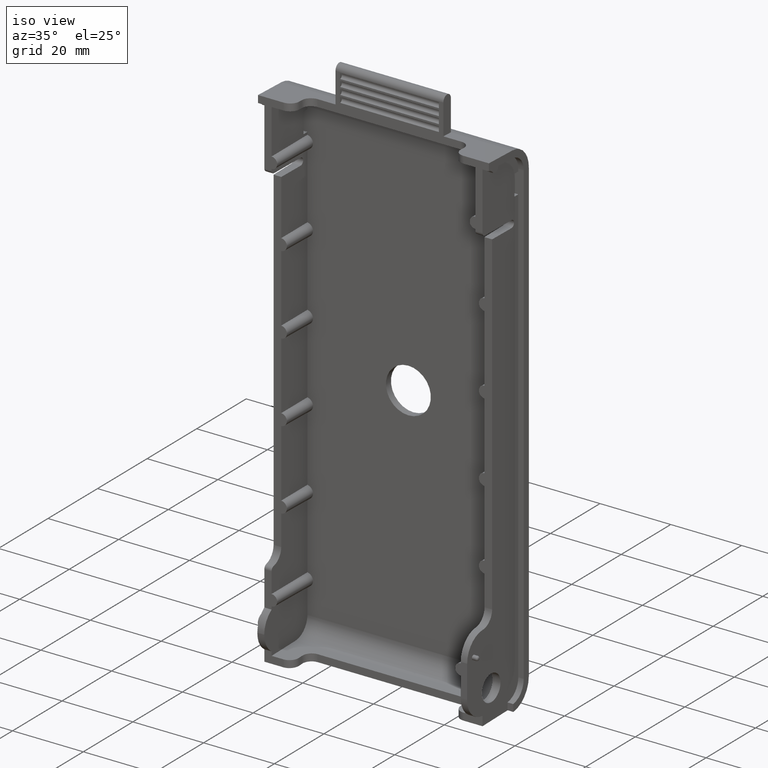
[diagram: clean part render]
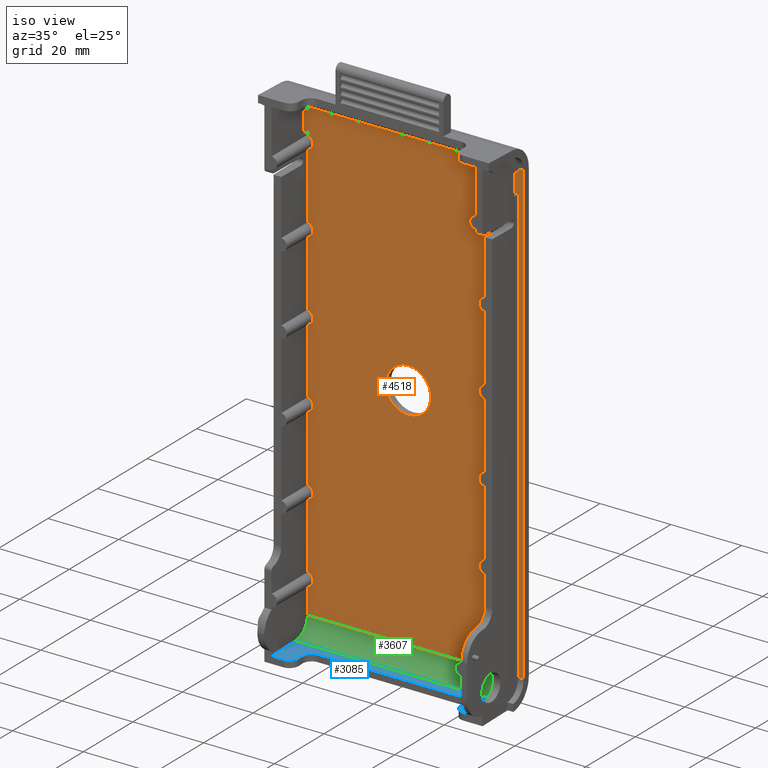
[diagram: same view with three faces highlighted in distinct colors, each labeled with its STEP entity id]
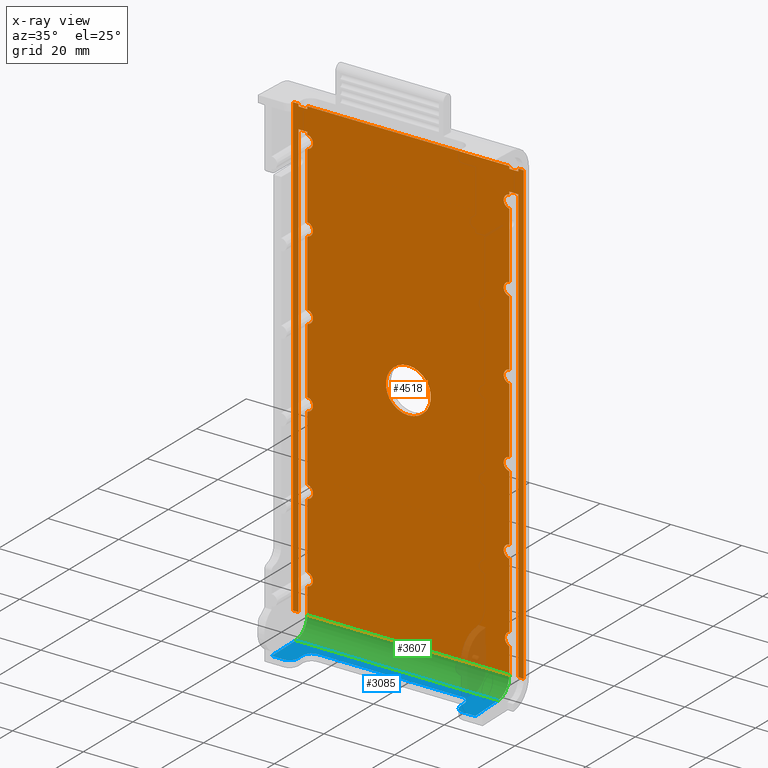
[diagram: x-ray of the same camera — body ghosted, the three highlighted faces saturated]
A machine part, iso view with three faces highlighted in distinct colors.
The next image is the same camera in x-ray (body ghosted, the three faces saturated) — at least one of them is partly hidden behind the body in this view.
Their STEP definitions:

[orange] entity #4518 — the highlighted planar face has unit normal (0, -1, 0).
#4 = VERTEX_POINT ( 'NONE', #1931 ) ;
#19 = ORIENTED_EDGE ( 'NONE', *, *, #150, .F. ) ;
#21 = LINE ( 'NONE', #4323, #904 ) ;
#32 = EDGE_CURVE ( 'NONE', #1934, #3580, #342, .T. ) ;
#70 = VECTOR ( 'NONE', #3710, 39.37007874015748100 ) ;
#77 = CARTESIAN_POINT ( 'NONE',  ( 0.0000000000000000000, 0.5549999999999999400, 0.0000000000000000000 ) ) ;
#78 = CIRCLE ( 'NONE', #1580, 0.07218756103516076100 ) ;
#81 = CARTESIAN_POINT ( 'NONE',  ( 1.123716286491911700, 0.5550000000000000500, 2.774499999999998400 ) ) ;
#111 = DIRECTION ( 'NONE',  ( 1.000000000000000000, 0.0000000000000000000, 0.0000000000000000000 ) ) ;
#114 = CARTESIAN_POINT ( 'NONE',  ( -1.123716286491911700, 0.5550000000000000500, 2.774499999999998400 ) ) ;
#115 = EDGE_CURVE ( 'NONE', #916, #2253, #3965, .T. ) ;
#132 = CIRCLE ( 'NONE', #3365, 0.07218756103516083000 ) ;
#143 = VECTOR ( 'NONE', #3775, 39.37007874015748100 ) ;
#150 = EDGE_CURVE ( 'NONE', #1934, #2458, #3128, .T. ) ;
#160 = ORIENTED_EDGE ( 'NONE', *, *, #2166, .T. ) ;
#177 = CARTESIAN_POINT ( 'NONE',  ( 1.123716286491911700, 0.5550000000000000500, -1.391534572965770900 ) ) ;
#191 = DIRECTION ( 'NONE',  ( -0.0000000000000000000, -0.0000000000000000000, -1.000000000000000000 ) ) ;
#205 = ORIENTED_EDGE ( 'NONE', *, *, #115, .T. ) ;
#208 = CARTESIAN_POINT ( 'NONE',  ( -1.123716286491911700, 0.5550000000000000500, -1.248465427034229500 ) ) ;
#221 = ORIENTED_EDGE ( 'NONE', *, *, #1608, .T. ) ;
#241 = LINE ( 'NONE', #1715, #2268 ) ;
#268 = CARTESIAN_POINT ( 'NONE',  ( 1.123716286491911700, 0.5550000000000000500, 0.3684654270342294600 ) ) ;
#310 = CARTESIAN_POINT ( 'NONE',  ( 1.123716286491911700, 0.5550000000000000500, 2.774499999999998400 ) ) ;
#319 = EDGE_CURVE ( 'NONE', #5039, #3277, #337, .T. ) ;
#337 = CIRCLE ( 'NONE', #3792, 0.2500000000000000000 ) ;
#340 = CARTESIAN_POINT ( 'NONE',  ( 1.123716286491911700, 0.5550000000000000500, 0.5115345729657705400 ) ) ;
#342 = CIRCLE ( 'NONE', #1422, 0.07218756103516076100 ) ;
#352 = EDGE_CURVE ( 'NONE', #2425, #4910, #4421, .T. ) ;
#355 = LINE ( 'NONE', #1345, #1629 ) ;
#378 = ORIENTED_EDGE ( 'NONE', *, *, #1796, .T. ) ;
#394 = CIRCLE ( 'NONE', #1510, 0.07218756103516076100 ) ;
#403 = LINE ( 'NONE', #2395, #2659 ) ;
#439 = EDGE_CURVE ( 'NONE', #2591, #4648, #4989, .T. ) ;
#468 = LINE ( 'NONE', #3773, #2799 ) ;
#487 = VERTEX_POINT ( 'NONE', #4397 ) ;
#494 = ORIENTED_EDGE ( 'NONE', *, *, #1474, .F. ) ;
#527 = FACE_BOUND ( 'NONE', #890, .T. ) ;
#531 = AXIS2_PLACEMENT_3D ( 'NONE', #3069, #3063, #3060 ) ;
#554 = DIRECTION ( 'NONE',  ( -1.398599473538766500E-018, 8.012571017583610100E-017, -1.000000000000000000 ) ) ;
#589 = DIRECTION ( 'NONE',  ( -1.398599473538766500E-018, -8.012571017583610100E-017, 1.000000000000000000 ) ) ;
#645 = VECTOR ( 'NONE', #4068, 39.37007874015748100 ) ;
#649 = CARTESIAN_POINT ( 'NONE',  ( 1.123716286491911700, 0.5550000000000000500, 1.248465427034229500 ) ) ;
#655 = CARTESIAN_POINT ( 'NONE',  ( -1.223103594805742500, 0.5550000000000003800, 2.817825311372742700 ) ) ;
#661 = DIRECTION ( 'NONE',  ( -1.398599473538766500E-018, 8.012571017583610100E-017, -1.000000000000000000 ) ) ;
#662 = VERTEX_POINT ( 'NONE', #4088 ) ;
#684 = CARTESIAN_POINT ( 'NONE',  ( -1.328100000000000100, 0.5550000000000008300, 2.299999999999999800 ) ) ;
#698 = VERTEX_POINT ( 'NONE', #3948 ) ;
#713 = DIRECTION ( 'NONE',  ( 1.000000000000000000, -0.0000000000000000000, -0.0000000000000000000 ) ) ;
#727 = VERTEX_POINT ( 'NONE', #3931 ) ;
#736 = ORIENTED_EDGE ( 'NONE', *, *, #4369, .T. ) ;
#786 = EDGE_CURVE ( 'NONE', #4953, #3836, #2579, .T. ) ;
#807 = CIRCLE ( 'NONE', #4418, 0.07218756103516083000 ) ;
#831 = CARTESIAN_POINT ( 'NONE',  ( -1.123716286491911700, 0.5550000000000000500, 2.774499999999998400 ) ) ;
#890 = EDGE_LOOP ( 'NONE', ( #2555, #2574 ) ) ;
#896 = CARTESIAN_POINT ( 'NONE',  ( 1.123716286491911700, 0.5550000000000000500, 2.774499999999998400 ) ) ;
#904 = VECTOR ( 'NONE', #4330, 39.37007874015748100 ) ;
#916 = VERTEX_POINT ( 'NONE', #3610 ) ;
#937 = LINE ( 'NONE', #3223, #1976 ) ;
#941 = DIRECTION ( 'NONE',  ( 0.0000000000000000000, 0.0000000000000000000, -1.000000000000000000 ) ) ;
#969 = DIRECTION ( 'NONE',  ( -0.0000000000000000000, -0.0000000000000000000, -1.000000000000000000 ) ) ;
#970 = ORIENTED_EDGE ( 'NONE', *, *, #4920, .T. ) ;
#990 = ORIENTED_EDGE ( 'NONE', *, *, #2237, .F. ) ;
#1000 = CARTESIAN_POINT ( 'NONE',  ( -1.284500000000000000, 0.5550000000000008300, -2.557089342174827500 ) ) ;
#1041 = VECTOR ( 'NONE', #111, 39.37007874015748100 ) ;
#1051 = ORIENTED_EDGE ( 'NONE', *, *, #3376, .F. ) ;
#1072 = ORIENTED_EDGE ( 'NONE', *, *, #1822, .T. ) ;
#1080 = VECTOR ( 'NONE', #661, 39.37007874015748100 ) ;
#1094 = VERTEX_POINT ( 'NONE', #3107 ) ;
#1095 = EDGE_CURVE ( 'NONE', #3378, #2924, #1567, .T. ) ;
#1120 = EDGE_CURVE ( 'NONE', #4718, #4953, #1825, .T. ) ;
#1122 = CARTESIAN_POINT ( 'NONE',  ( -1.223103594805742500, 0.5550000000000008300, -2.557089342174827500 ) ) ;
#1145 = VERTEX_POINT ( 'NONE', #3031 ) ;
#1161 = LINE ( 'NONE', #1243, #4135 ) ;
#1164 = AXIS2_PLACEMENT_3D ( 'NONE', #1561, #1683, #1706 ) ;
#1180 = VERTEX_POINT ( 'NONE', #2871 ) ;
#1182 = EDGE_CURVE ( 'NONE', #1479, #1251, #3027, .T. ) ;
#1183 = VERTEX_POINT ( 'NONE', #2831 ) ;
#1190 = VECTOR ( 'NONE', #1285, 39.37007874015748100 ) ;
#1201 = LINE ( 'NONE', #3933, #1443 ) ;
#1207 = FACE_OUTER_BOUND ( 'NONE', #4337, .T. ) ;
#1243 = CARTESIAN_POINT ( 'NONE',  ( 1.123716286491911700, 0.5550000000000000500, 2.774499999999998400 ) ) ;
#1251 = VERTEX_POINT ( 'NONE', #2676 ) ;
#1284 = CARTESIAN_POINT ( 'NONE',  ( -1.123716286491911700, 0.5550000000000000500, 2.774499999999998400 ) ) ;
#1285 = DIRECTION ( 'NONE',  ( -0.0000000000000000000, -0.0000000000000000000, -1.000000000000000000 ) ) ;
#1290 = CARTESIAN_POINT ( 'NONE',  ( 1.123716286491911700, 0.5550000000000008300, 2.299999999999999800 ) ) ;
#1299 = CARTESIAN_POINT ( 'NONE',  ( 1.224499999999999900, 0.5550000000000000500, 2.817825311372742700 ) ) ;
#1323 = CARTESIAN_POINT ( 'NONE',  ( -1.223103594805742500, 0.5550000000000008300, 2.299999999999999800 ) ) ;
#1345 = CARTESIAN_POINT ( 'NONE',  ( -1.328100000000000100, 0.5550000000000008300, 2.529999999999999400 ) ) ;
#1369 = VERTEX_POINT ( 'NONE', #1323 ) ;
#1378 = LINE ( 'NONE', #684, #1975 ) ;
#1422 = AXIS2_PLACEMENT_3D ( 'NONE', #1781, #1772, #1757 ) ;
#1436 = LINE ( 'NONE', #81, #2280 ) ;
#1439 = CARTESIAN_POINT ( 'NONE',  ( 1.123716286491911700, 0.5550000000000000500, -2.128864286417290400 ) ) ;
#1443 = VECTOR ( 'NONE', #2726, 39.37007874015748100 ) ;
#1447 = CARTESIAN_POINT ( 'NONE',  ( 1.123716286491911700, 0.5550000000000000500, -2.271132438499892100 ) ) ;
#1449 = CARTESIAN_POINT ( 'NONE',  ( -1.223103594805742500, 0.5550000000000003800, 2.817825311372742700 ) ) ;
#1473 = CARTESIAN_POINT ( 'NONE',  ( 1.046828546081596900, 0.5550000000000000500, -2.241239976024747400 ) ) ;
#1474 = EDGE_CURVE ( 'NONE', #3378, #3580, #1436, .T. ) ;
#1479 = VERTEX_POINT ( 'NONE', #4961 ) ;
#1488 = CARTESIAN_POINT ( 'NONE',  ( 1.123716286491911700, 0.5550000000000000500, 2.774499999999998400 ) ) ;
#1491 = CARTESIAN_POINT ( 'NONE',  ( 1.046828546081596900, 0.5550000000000000500, -2.158756748892435100 ) ) ;
#1510 = AXIS2_PLACEMENT_3D ( 'NONE', #2357, #4077, #4111 ) ;
#1520 = CIRCLE ( 'NONE', #1164, 0.07218756103516083000 ) ;
#1551 = VERTEX_POINT ( 'NONE', #2863 ) ;
#1561 = CARTESIAN_POINT ( 'NONE',  ( 1.133403847527069100, 0.5550000000000000500, -1.320000000000000100 ) ) ;
#1567 = CIRCLE ( 'NONE', #2190, 0.07218756103516083000 ) ;
#1580 = AXIS2_PLACEMENT_3D ( 'NONE', #2056, #2066, #2076 ) ;
#1588 = CARTESIAN_POINT ( 'NONE',  ( -1.123716286491911700, 0.5550000000000000500, 0.5115345729657705400 ) ) ;
#1593 = LINE ( 'NONE', #655, #1080 ) ;
#1608 = EDGE_CURVE ( 'NONE', #1655, #4967, #132, .T. ) ;
#1629 = VECTOR ( 'NONE', #3199, 39.37007874015748100 ) ;
#1655 = VERTEX_POINT ( 'NONE', #2590 ) ;
#1662 = ORIENTED_EDGE ( 'NONE', *, *, #5043, .F. ) ;
#1682 = ORIENTED_EDGE ( 'NONE', *, *, #4759, .F. ) ;
#1683 = DIRECTION ( 'NONE',  ( -0.0000000000000000000, 1.000000000000000000, -0.0000000000000000000 ) ) ;
#1698 = CARTESIAN_POINT ( 'NONE',  ( -1.123716286491911200, 0.5550000000000000500, 2.557089342174832000 ) ) ;
#1702 = CARTESIAN_POINT ( 'NONE',  ( -1.123716286491911700, 0.5550000000000000500, 2.774499999999998400 ) ) ;
#1706 = DIRECTION ( 'NONE',  ( 0.0000000000000000000, 0.0000000000000000000, -1.000000000000000000 ) ) ;
#1715 = CARTESIAN_POINT ( 'NONE',  ( 1.223103594805742500, 0.5550000000000003800, 2.817825311372742700 ) ) ;
#1749 = ORIENTED_EDGE ( 'NONE', *, *, #2550, .F. ) ;
#1757 = DIRECTION ( 'NONE',  ( 0.0000000000000000000, 0.0000000000000000000, -1.000000000000000000 ) ) ;
#1766 = CARTESIAN_POINT ( 'NONE',  ( -1.123716286491911700, 0.5550000000000000500, 2.128465427034229600 ) ) ;
#1772 = DIRECTION ( 'NONE',  ( -0.0000000000000000000, 1.000000000000000000, -0.0000000000000000000 ) ) ;
#1781 = CARTESIAN_POINT ( 'NONE',  ( 1.133403847527069100, 0.5550000000000000500, 0.4400000000000000000 ) ) ;
#1782 = DIRECTION ( 'NONE',  ( -0.0000000000000000000, 1.000000000000000000, -0.0000000000000000000 ) ) ;
#1790 = DIRECTION ( 'NONE',  ( -1.398599473538766500E-018, -8.012571017583610100E-017, 1.000000000000000000 ) ) ;
#1796 = EDGE_CURVE ( 'NONE', #1094, #1655, #2479, .T. ) ;
#1802 = DIRECTION ( 'NONE',  ( -0.0000000000000000000, -0.0000000000000000000, -1.000000000000000000 ) ) ;
#1822 = EDGE_CURVE ( 'NONE', #3836, #2400, #78, .T. ) ;
#1825 = CIRCLE ( 'NONE', #531, 0.07218756103516083000 ) ;
#1854 = LINE ( 'NONE', #3760, #70 ) ;
#1857 = CARTESIAN_POINT ( 'NONE',  ( 1.123716286491911700, 0.5550000000000008300, 2.529999999999999400 ) ) ;
#1921 = VERTEX_POINT ( 'NONE', #177 ) ;
#1924 = DIRECTION ( 'NONE',  ( 0.0000000000000000000, -1.000000000000000000, 0.0000000000000000000 ) ) ;
#1931 = CARTESIAN_POINT ( 'NONE',  ( -1.123716286491911700, 0.5550000000000000500, -1.391534572965770900 ) ) ;
#1934 = VERTEX_POINT ( 'NONE', #268 ) ;
#1975 = VECTOR ( 'NONE', #713, 39.37007874015748100 ) ;
#1976 = VECTOR ( 'NONE', #4374, 39.37007874015748100 ) ;
#1989 = EDGE_CURVE ( 'NONE', #4470, #3071, #1378, .T. ) ;
#2042 = DIRECTION ( 'NONE',  ( -0.0000000000000000000, -0.0000000000000000000, -1.000000000000000000 ) ) ;
#2056 = CARTESIAN_POINT ( 'NONE',  ( -1.133403847527069100, 0.5550000000000000500, 0.4400000000000000000 ) ) ;
#2066 = DIRECTION ( 'NONE',  ( -0.0000000000000000000, 1.000000000000000000, -0.0000000000000000000 ) ) ;
#2076 = DIRECTION ( 'NONE',  ( 0.0000000000000000000, 0.0000000000000000000, -1.000000000000000000 ) ) ;
#2077 = PLANE ( 'NONE',  #3282 ) ;
#2084 = ORIENTED_EDGE ( 'NONE', *, *, #2778, .F. ) ;
#2089 = ORIENTED_EDGE ( 'NONE', *, *, #1095, .T. ) ;
#2103 = DIRECTION ( 'NONE',  ( 0.0000000000000000000, -1.000000000000000000, 0.0000000000000000000 ) ) ;
#2105 = CARTESIAN_POINT ( 'NONE',  ( -1.123716286491911700, 0.5550000000000000500, 0.3684654270342294600 ) ) ;
#2114 = ORIENTED_EDGE ( 'NONE', *, *, #4771, .F. ) ;
#2166 = EDGE_CURVE ( 'NONE', #4156, #4164, #807, .T. ) ;
#2183 = AXIS2_PLACEMENT_3D ( 'NONE', #77, #1924, #2438 ) ;
#2190 = AXIS2_PLACEMENT_3D ( 'NONE', #3096, #3079, #3082 ) ;
#2195 = CARTESIAN_POINT ( 'NONE',  ( -1.123716286491911700, 0.5550000000000000500, 1.248465427034229500 ) ) ;
#2203 = VECTOR ( 'NONE', #589, 39.37007874015748100 ) ;
#2234 = EDGE_CURVE ( 'NONE', #698, #1183, #1854, .T. ) ;
#2237 = EDGE_CURVE ( 'NONE', #4597, #5185, #468, .T. ) ;
#2240 = CARTESIAN_POINT ( 'NONE',  ( 3.061616997868382400E-017, 0.5549999999999999400, -0.2500000000000000000 ) ) ;
#2253 = VERTEX_POINT ( 'NONE', #3681 ) ;
#2256 = CARTESIAN_POINT ( 'NONE',  ( 1.133403847527069100, 0.5550000000000000500, 2.200000000000000200 ) ) ;
#2261 = DIRECTION ( 'NONE',  ( -0.0000000000000000000, -0.0000000000000000000, -1.000000000000000000 ) ) ;
#2268 = VECTOR ( 'NONE', #1790, 39.37007874015748100 ) ;
#2272 = VECTOR ( 'NONE', #3888, 39.37007874015748100 ) ;
#2280 = VECTOR ( 'NONE', #4773, 39.37007874015748100 ) ;
#2287 = VECTOR ( 'NONE', #3925, 39.37007874015748100 ) ;
#2320 = CARTESIAN_POINT ( 'NONE',  ( -1.123716286491911700, 0.5550000000000000500, -2.271534572965770800 ) ) ;
#2321 = EDGE_CURVE ( 'NONE', #487, #4280, #394, .T. ) ;
#2334 = CARTESIAN_POINT ( 'NONE',  ( 1.133403847527069100, 0.5550000000000000500, -0.4400000000000000000 ) ) ;
#2337 = EDGE_CURVE ( 'NONE', #727, #4406, #1201, .T. ) ;
#2349 = ORIENTED_EDGE ( 'NONE', *, *, #2417, .T. ) ;
#2353 = DIRECTION ( 'NONE',  ( -0.0000000000000000000, 1.000000000000000000, -0.0000000000000000000 ) ) ;
#2357 = CARTESIAN_POINT ( 'NONE',  ( -1.133403847527069100, 0.5550000000000000500, -0.4400000000000000000 ) ) ;
#2361 = DIRECTION ( 'NONE',  ( 0.0000000000000000000, 0.0000000000000000000, -1.000000000000000000 ) ) ;
#2384 = ORIENTED_EDGE ( 'NONE', *, *, #2709, .T. ) ;
#2395 = CARTESIAN_POINT ( 'NONE',  ( -1.328100000000000100, 0.5550000000000008300, 2.299999999999999800 ) ) ;
#2400 = VERTEX_POINT ( 'NONE', #2105 ) ;
#2417 = EDGE_CURVE ( 'NONE', #2400, #487, #2843, .T. ) ;
#2418 = LINE ( 'NONE', #114, #2272 ) ;
#2425 = VERTEX_POINT ( 'NONE', #5118 ) ;
#2430 = EDGE_CURVE ( 'NONE', #3945, #2946, #355, .T. ) ;
#2438 = DIRECTION ( 'NONE',  ( 0.0000000000000000000, 0.0000000000000000000, -1.000000000000000000 ) ) ;
#2458 = VERTEX_POINT ( 'NONE', #5050 ) ;
#2462 = AXIS2_PLACEMENT_3D ( 'NONE', #2334, #2353, #2361 ) ;
#2477 = VECTOR ( 'NONE', #2678, 39.37007874015748100 ) ;
#2479 = LINE ( 'NONE', #1702, #3553 ) ;
#2483 = CARTESIAN_POINT ( 'NONE',  ( 1.123716286491911700, 0.5550000000000000500, 2.774499999999998400 ) ) ;
#2486 = ORIENTED_EDGE ( 'NONE', *, *, #2842, .F. ) ;
#2531 = ORIENTED_EDGE ( 'NONE', *, *, #2853, .T. ) ;
#2536 = EDGE_CURVE ( 'NONE', #4805, #4, #3186, .T. ) ;
#2550 = EDGE_CURVE ( 'NONE', #1551, #3071, #4134, .T. ) ;
#2555 = ORIENTED_EDGE ( 'NONE', *, *, #3939, .F. ) ;
#2574 = ORIENTED_EDGE ( 'NONE', *, *, #319, .F. ) ;
#2579 = LINE ( 'NONE', #3900, #3320 ) ;
#2590 = CARTESIAN_POINT ( 'NONE',  ( -1.123716286491911700, 0.5550000000000000500, 2.271534572965770800 ) ) ;
#2591 = VERTEX_POINT ( 'NONE', #1857 ) ;
#2626 = ORIENTED_EDGE ( 'NONE', *, *, #2536, .T. ) ;
#2650 = LINE ( 'NONE', #3665, #2287 ) ;
#2657 = ORIENTED_EDGE ( 'NONE', *, *, #2337, .F. ) ;
#2659 = VECTOR ( 'NONE', #3289, 39.37007874015748100 ) ;
#2676 = CARTESIAN_POINT ( 'NONE',  ( 1.284500000000000000, 0.5550000000000002700, 2.557089342174832000 ) ) ;
#2678 = DIRECTION ( 'NONE',  ( -0.0000000000000000000, -0.0000000000000000000, -1.000000000000000000 ) ) ;
#2702 = ORIENTED_EDGE ( 'NONE', *, *, #2430, .F. ) ;
#2709 = EDGE_CURVE ( 'NONE', #4597, #4873, #3428, .T. ) ;
#2726 = DIRECTION ( 'NONE',  ( -1.000000000000000000, -0.0000000000000000000, -0.0000000000000000000 ) ) ;
#2730 = VECTOR ( 'NONE', #4516, 39.37007874015748100 ) ;
#2735 = LINE ( 'NONE', #896, #3363 ) ;
#2745 = DIRECTION ( 'NONE',  ( 0.0000000000000000000, -8.012571017583608800E-017, 1.000000000000000000 ) ) ;
#2778 = EDGE_CURVE ( 'NONE', #1921, #2253, #2898, .T. ) ;
#2799 = VECTOR ( 'NONE', #2745, 39.37007874015748100 ) ;
#2800 = CARTESIAN_POINT ( 'NONE',  ( 0.0000000000000000000, 0.5549999999999999400, 0.2500000000000000000 ) ) ;
#2805 = ORIENTED_EDGE ( 'NONE', *, *, #3226, .T. ) ;
#2824 = DIRECTION ( 'NONE',  ( 0.0000000000000000000, -8.012571017583608800E-017, 1.000000000000000000 ) ) ;
#2831 = CARTESIAN_POINT ( 'NONE',  ( 1.123716286491911700, 0.5550000000000000500, -1.248465427034229500 ) ) ;
#2842 = EDGE_CURVE ( 'NONE', #1479, #1551, #2650, .T. ) ;
#2843 = LINE ( 'NONE', #4270, #5168 ) ;
#2845 = CARTESIAN_POINT ( 'NONE',  ( 1.284500000000000000, 0.5550000000000008300, -2.557089342174827500 ) ) ;
#2853 = EDGE_CURVE ( 'NONE', #4933, #2946, #2418, .T. ) ;
#2858 = CARTESIAN_POINT ( 'NONE',  ( 1.284500000000000000, 0.5550000000000002700, 2.557089342174832000 ) ) ;
#2863 = CARTESIAN_POINT ( 'NONE',  ( 1.223103594805742500, 0.5550000000000008300, -2.557089342174827500 ) ) ;
#2866 = VECTOR ( 'NONE', #554, 39.37007874015748100 ) ;
#2868 = AXIS2_PLACEMENT_3D ( 'NONE', #4124, #4131, #4144 ) ;
#2871 = CARTESIAN_POINT ( 'NONE',  ( 1.123716286491911700, 0.5550000000000000500, 2.557089342174832000 ) ) ;
#2873 = ORIENTED_EDGE ( 'NONE', *, *, #1182, .T. ) ;
#2892 = CARTESIAN_POINT ( 'NONE',  ( -1.123716286491911700, 0.5550000000000000500, 2.774499999999998400 ) ) ;
#2898 = LINE ( 'NONE', #2483, #2730 ) ;
#2924 = VERTEX_POINT ( 'NONE', #5112 ) ;
#2946 = VERTEX_POINT ( 'NONE', #4711 ) ;
#2988 = VECTOR ( 'NONE', #2042, 39.37007874015748100 ) ;
#3006 = ORIENTED_EDGE ( 'NONE', *, *, #32, .T. ) ;
#3027 = LINE ( 'NONE', #2845, #4744 ) ;
#3031 = CARTESIAN_POINT ( 'NONE',  ( -1.223103594805742500, 0.5550000000000002700, 2.557089342174832000 ) ) ;
#3055 = LINE ( 'NONE', #831, #143 ) ;
#3060 = DIRECTION ( 'NONE',  ( 0.0000000000000000000, 0.0000000000000000000, -1.000000000000000000 ) ) ;
#3063 = DIRECTION ( 'NONE',  ( -0.0000000000000000000, 1.000000000000000000, -0.0000000000000000000 ) ) ;
#3069 = CARTESIAN_POINT ( 'NONE',  ( -1.133403847527069100, 0.5550000000000000500, 1.320000000000000100 ) ) ;
#3071 = VERTEX_POINT ( 'NONE', #3949 ) ;
#3079 = DIRECTION ( 'NONE',  ( -0.0000000000000000000, 1.000000000000000000, -0.0000000000000000000 ) ) ;
#3082 = DIRECTION ( 'NONE',  ( 0.0000000000000000000, 0.0000000000000000000, -1.000000000000000000 ) ) ;
#3093 = EDGE_CURVE ( 'NONE', #4933, #1180, #21, .T. ) ;
#3096 = CARTESIAN_POINT ( 'NONE',  ( 1.133403847527069100, 0.5550000000000000500, 1.320000000000000100 ) ) ;
#3103 = EDGE_CURVE ( 'NONE', #4470, #4164, #4507, .T. ) ;
#3107 = CARTESIAN_POINT ( 'NONE',  ( -1.123716286491911900, 0.5550000000000008300, 2.299999999999999800 ) ) ;
#3116 = DIRECTION ( 'NONE',  ( 0.0000000000000000000, -0.0000000000000000000, -1.000000000000000000 ) ) ;
#3120 = VECTOR ( 'NONE', #4618, 39.37007874015748100 ) ;
#3128 = LINE ( 'NONE', #1488, #1190 ) ;
#3139 = ORIENTED_EDGE ( 'NONE', *, *, #4522, .T. ) ;
#3144 = CIRCLE ( 'NONE', #2462, 0.07218756103516076100 ) ;
#3152 = LINE ( 'NONE', #1284, #2477 ) ;
#3186 = CIRCLE ( 'NONE', #2868, 0.07218756103516083000 ) ;
#3199 = DIRECTION ( 'NONE',  ( 1.000000000000000000, -0.0000000000000000000, -0.0000000000000000000 ) ) ;
#3222 = ORIENTED_EDGE ( 'NONE', *, *, #786, .T. ) ;
#3223 = CARTESIAN_POINT ( 'NONE',  ( -1.123716286491911700, 0.5550000000000000500, 2.774499999999998400 ) ) ;
#3226 = EDGE_CURVE ( 'NONE', #698, #2458, #3144, .T. ) ;
#3277 = VERTEX_POINT ( 'NONE', #2800 ) ;
#3282 = AXIS2_PLACEMENT_3D ( 'NONE', #1299, #2103, #3116 ) ;
#3289 = DIRECTION ( 'NONE',  ( 1.000000000000000000, -0.0000000000000000000, -0.0000000000000000000 ) ) ;
#3301 = DIRECTION ( 'NONE',  ( -0.0000000000000000000, 1.000000000000000000, -0.0000000000000000000 ) ) ;
#3320 = VECTOR ( 'NONE', #3808, 39.37007874015748100 ) ;
#3331 = VECTOR ( 'NONE', #4432, 39.37007874015748100 ) ;
#3352 = CARTESIAN_POINT ( 'NONE',  ( -1.133403847527069100, 0.5550000000000000500, 2.200000000000000200 ) ) ;
#3361 = DIRECTION ( 'NONE',  ( 0.0000000000000000000, 0.0000000000000000000, -1.000000000000000000 ) ) ;
#3363 = VECTOR ( 'NONE', #191, 39.37007874015748100 ) ;
#3365 = AXIS2_PLACEMENT_3D ( 'NONE', #3352, #3301, #3361 ) ;
#3375 = CARTESIAN_POINT ( 'NONE',  ( -1.284500000000000000, 0.5550000000000002700, 2.557089342174832000 ) ) ;
#3376 = EDGE_CURVE ( 'NONE', #1145, #3945, #1593, .T. ) ;
#3378 = VERTEX_POINT ( 'NONE', #649 ) ;
#3406 = CARTESIAN_POINT ( 'NONE',  ( 1.123716286491911700, 0.5550000000000000500, 2.271534572965770800 ) ) ;
#3428 = LINE ( 'NONE', #4247, #3331 ) ;
#3484 = AXIS2_PLACEMENT_3D ( 'NONE', #4854, #4848, #4840 ) ;
#3507 = ORIENTED_EDGE ( 'NONE', *, *, #3801, .T. ) ;
#3549 = ORIENTED_EDGE ( 'NONE', *, *, #4336, .T. ) ;
#3553 = VECTOR ( 'NONE', #1802, 39.37007874015748100 ) ;
#3554 = CARTESIAN_POINT ( 'NONE',  ( 1.123716286491911700, 0.5550000000000000500, 2.128465427034229600 ) ) ;
#3580 = VERTEX_POINT ( 'NONE', #340 ) ;
#3610 = CARTESIAN_POINT ( 'NONE',  ( 1.123716286491911700, 0.5550000000000000500, -2.271132438499892100 ) ) ;
#3665 = CARTESIAN_POINT ( 'NONE',  ( 1.284500000000000000, 0.5550000000000008300, -2.557089342174827500 ) ) ;
#3681 = CARTESIAN_POINT ( 'NONE',  ( 1.123716286491911700, 0.5550000000000000500, -2.128864286417290400 ) ) ;
#3710 = DIRECTION ( 'NONE',  ( -0.0000000000000000000, -0.0000000000000000000, -1.000000000000000000 ) ) ;
#3760 = CARTESIAN_POINT ( 'NONE',  ( 1.123716286491911700, 0.5550000000000000500, 2.774499999999998400 ) ) ;
#3761 = ORIENTED_EDGE ( 'NONE', *, *, #1989, .T. ) ;
#3773 = CARTESIAN_POINT ( 'NONE',  ( -1.284500000000000000, 0.5550000000000008300, -2.557089342174827500 ) ) ;
#3775 = DIRECTION ( 'NONE',  ( -0.0000000000000000000, -0.0000000000000000000, -1.000000000000000000 ) ) ;
#3790 = LINE ( 'NONE', #310, #2988 ) ;
#3792 = AXIS2_PLACEMENT_3D ( 'NONE', #5098, #5081, #5068 ) ;
#3801 = EDGE_CURVE ( 'NONE', #1369, #1094, #403, .T. ) ;
#3808 = DIRECTION ( 'NONE',  ( -0.0000000000000000000, -0.0000000000000000000, -1.000000000000000000 ) ) ;
#3836 = VERTEX_POINT ( 'NONE', #1588 ) ;
#3850 = CIRCLE ( 'NONE', #2183, 0.2500000000000000000 ) ;
#3862 = LINE ( 'NONE', #4265, #1041 ) ;
#3864 = ORIENTED_EDGE ( 'NONE', *, *, #439, .F. ) ;
#3869 = EDGE_CURVE ( 'NONE', #4648, #662, #241, .T. ) ;
#3888 = DIRECTION ( 'NONE',  ( -0.0000000000000000000, -0.0000000000000000000, -1.000000000000000000 ) ) ;
#3900 = CARTESIAN_POINT ( 'NONE',  ( -1.123716286491911700, 0.5550000000000000500, 2.774499999999998400 ) ) ;
#3925 = DIRECTION ( 'NONE',  ( -1.000000000000000000, 0.0000000000000000000, 0.0000000000000000000 ) ) ;
#3931 = CARTESIAN_POINT ( 'NONE',  ( 1.123716286491911700, 0.5550000000000000500, -2.557089342174827500 ) ) ;
#3933 = CARTESIAN_POINT ( 'NONE',  ( 1.224499999999999900, 0.5550000000000000500, -2.557089342174827500 ) ) ;
#3939 = EDGE_CURVE ( 'NONE', #3277, #5039, #3850, .T. ) ;
#3945 = VERTEX_POINT ( 'NONE', #3956 ) ;
#3948 = CARTESIAN_POINT ( 'NONE',  ( 1.123716286491911700, 0.5550000000000000500, -0.5115345729657705400 ) ) ;
#3949 = CARTESIAN_POINT ( 'NONE',  ( 1.223103594805742300, 0.5550000000000008300, 2.299999999999999800 ) ) ;
#3956 = CARTESIAN_POINT ( 'NONE',  ( -1.223103594805742500, 0.5550000000000008300, 2.529999999999999400 ) ) ;
#3965 =( BOUNDED_CURVE ( )  B_SPLINE_CURVE ( 3, ( #1447, #1473, #1491, #1439 ),
 .UNSPECIFIED., .F., .F. ) 
 B_SPLINE_CURVE_WITH_KNOTS ( ( 4, 4 ),
 ( 1.941645016708658100, 4.341540290470926600 ),
 .UNSPECIFIED. ) 
 CURVE ( )  GEOMETRIC_REPRESENTATION_ITEM ( )  RATIONAL_B_SPLINE_CURVE ( ( 1.000000000000000000, 0.5749377056355490200, 0.5749377056355490200, 1.000000000000000000 ) ) 
 REPRESENTATION_ITEM ( '' )  );
#4014 = EDGE_CURVE ( 'NONE', #1180, #2591, #3790, .T. ) ;
#4056 = EDGE_CURVE ( 'NONE', #4, #2425, #3152, .T. ) ;
#4068 = DIRECTION ( 'NONE',  ( -1.000000000000000000, 0.0000000000000000000, 0.0000000000000000000 ) ) ;
#4077 = DIRECTION ( 'NONE',  ( -0.0000000000000000000, 1.000000000000000000, -0.0000000000000000000 ) ) ;
#4088 = CARTESIAN_POINT ( 'NONE',  ( 1.223103594805742500, 0.5550000000000002700, 2.557089342174832000 ) ) ;
#4106 = CARTESIAN_POINT ( 'NONE',  ( 1.223103594805742500, 0.5550000000000003800, 2.817825311372742700 ) ) ;
#4111 = DIRECTION ( 'NONE',  ( 0.0000000000000000000, 0.0000000000000000000, -1.000000000000000000 ) ) ;
#4115 = ORIENTED_EDGE ( 'NONE', *, *, #352, .T. ) ;
#4124 = CARTESIAN_POINT ( 'NONE',  ( -1.133403847527069100, 0.5550000000000000500, -1.320000000000000100 ) ) ;
#4131 = DIRECTION ( 'NONE',  ( -0.0000000000000000000, 1.000000000000000000, -0.0000000000000000000 ) ) ;
#4134 = LINE ( 'NONE', #4106, #2203 ) ;
#4135 = VECTOR ( 'NONE', #969, 39.37007874015748100 ) ;
#4144 = DIRECTION ( 'NONE',  ( 0.0000000000000000000, 0.0000000000000000000, -1.000000000000000000 ) ) ;
#4156 = VERTEX_POINT ( 'NONE', #3554 ) ;
#4159 = CARTESIAN_POINT ( 'NONE',  ( -1.123716286491911700, 0.5550000000000000500, 1.391534572965770900 ) ) ;
#4164 = VERTEX_POINT ( 'NONE', #3406 ) ;
#4247 = CARTESIAN_POINT ( 'NONE',  ( -1.284500000000000000, 0.5550000000000008300, -2.557089342174827500 ) ) ;
#4265 = CARTESIAN_POINT ( 'NONE',  ( -1.284500000000000000, 0.5550000000000002700, 2.557089342174832000 ) ) ;
#4270 = CARTESIAN_POINT ( 'NONE',  ( -1.123716286491911700, 0.5550000000000000500, 2.774499999999998400 ) ) ;
#4280 = VERTEX_POINT ( 'NONE', #4813 ) ;
#4302 = DIRECTION ( 'NONE',  ( -0.0000000000000000000, -0.0000000000000000000, -1.000000000000000000 ) ) ;
#4323 = CARTESIAN_POINT ( 'NONE',  ( 1.224499999999999900, 0.5550000000000000500, 2.557089342174832000 ) ) ;
#4330 = DIRECTION ( 'NONE',  ( 1.000000000000000000, 0.0000000000000000000, 0.0000000000000000000 ) ) ;
#4336 = EDGE_CURVE ( 'NONE', #4280, #4805, #4832, .T. ) ;
#4337 = EDGE_LOOP ( 'NONE', ( #4796, #3761, #1749, #2486, #2873, #4391, #4970, #3864, #4980, #4956, #2531, #2702, #1051, #1682, #990, #2384, #5134, #3507, #378, #221, #3139, #5056, #3222, #1072, #2349, #4686, #3549, #2626, #5213, #4115, #736, #2657, #2114, #205, #2084, #970, #4644, #2805, #19, #3006, #494, #2089, #1662, #160 ) ) ;
#4369 = EDGE_CURVE ( 'NONE', #4910, #4406, #937, .T. ) ;
#4374 = DIRECTION ( 'NONE',  ( -0.0000000000000000000, -0.0000000000000000000, -1.000000000000000000 ) ) ;
#4389 = CARTESIAN_POINT ( 'NONE',  ( 1.123716286491911700, 0.5550000000000000500, 2.774499999999998400 ) ) ;
#4391 = ORIENTED_EDGE ( 'NONE', *, *, #4895, .T. ) ;
#4392 = CARTESIAN_POINT ( 'NONE',  ( 1.223103594805742300, 0.5550000000000008300, 2.529999999999999400 ) ) ;
#4393 = DIRECTION ( 'NONE',  ( -0.0000000000000000000, -0.0000000000000000000, -1.000000000000000000 ) ) ;
#4397 = CARTESIAN_POINT ( 'NONE',  ( -1.123716286491911700, 0.5550000000000000500, -0.3684654270342294600 ) ) ;
#4406 = VERTEX_POINT ( 'NONE', #5084 ) ;
#4418 = AXIS2_PLACEMENT_3D ( 'NONE', #2256, #1782, #941 ) ;
#4421 = CIRCLE ( 'NONE', #3484, 0.07218756103516083000 ) ;
#4432 = DIRECTION ( 'NONE',  ( 1.000000000000000000, 0.0000000000000000000, 0.0000000000000000000 ) ) ;
#4470 = VERTEX_POINT ( 'NONE', #1290 ) ;
#4507 = LINE ( 'NONE', #4389, #4576 ) ;
#4516 = DIRECTION ( 'NONE',  ( -0.0000000000000000000, -0.0000000000000000000, -1.000000000000000000 ) ) ;
#4518 = ADVANCED_FACE ( 'NONE', ( #1207, #527 ), #2077, .T. ) ;
#4522 = EDGE_CURVE ( 'NONE', #4967, #4718, #3055, .T. ) ;
#4576 = VECTOR ( 'NONE', #4393, 39.37007874015748100 ) ;
#4597 = VERTEX_POINT ( 'NONE', #1000 ) ;
#4618 = DIRECTION ( 'NONE',  ( 1.000000000000000000, -0.0000000000000000000, -0.0000000000000000000 ) ) ;
#4644 = ORIENTED_EDGE ( 'NONE', *, *, #2234, .F. ) ;
#4646 = CARTESIAN_POINT ( 'NONE',  ( -1.328100000000000100, 0.5550000000000008300, 2.529999999999999400 ) ) ;
#4648 = VERTEX_POINT ( 'NONE', #4392 ) ;
#4686 = ORIENTED_EDGE ( 'NONE', *, *, #2321, .T. ) ;
#4711 = CARTESIAN_POINT ( 'NONE',  ( -1.123716286491911700, 0.5550000000000008300, 2.529999999999999400 ) ) ;
#4718 = VERTEX_POINT ( 'NONE', #4159 ) ;
#4744 = VECTOR ( 'NONE', #2824, 39.37007874015748100 ) ;
#4759 = EDGE_CURVE ( 'NONE', #5185, #1145, #3862, .T. ) ;
#4771 = EDGE_CURVE ( 'NONE', #916, #727, #2735, .T. ) ;
#4773 = DIRECTION ( 'NONE',  ( -0.0000000000000000000, -0.0000000000000000000, -1.000000000000000000 ) ) ;
#4796 = ORIENTED_EDGE ( 'NONE', *, *, #3103, .F. ) ;
#4805 = VERTEX_POINT ( 'NONE', #208 ) ;
#4813 = CARTESIAN_POINT ( 'NONE',  ( -1.123716286491911700, 0.5550000000000000500, -0.5115345729657705400 ) ) ;
#4817 = LINE ( 'NONE', #1449, #2866 ) ;
#4832 = LINE ( 'NONE', #2892, #5062 ) ;
#4840 = DIRECTION ( 'NONE',  ( 0.0000000000000000000, 0.0000000000000000000, -1.000000000000000000 ) ) ;
#4848 = DIRECTION ( 'NONE',  ( -0.0000000000000000000, 1.000000000000000000, -0.0000000000000000000 ) ) ;
#4854 = CARTESIAN_POINT ( 'NONE',  ( -1.133403847527069100, 0.5550000000000000500, -2.200000000000000200 ) ) ;
#4873 = VERTEX_POINT ( 'NONE', #1122 ) ;
#4887 = LINE ( 'NONE', #2858, #645 ) ;
#4890 = EDGE_CURVE ( 'NONE', #1369, #4873, #4817, .T. ) ;
#4895 = EDGE_CURVE ( 'NONE', #1251, #662, #4887, .T. ) ;
#4910 = VERTEX_POINT ( 'NONE', #2320 ) ;
#4920 = EDGE_CURVE ( 'NONE', #1921, #1183, #1520, .T. ) ;
#4933 = VERTEX_POINT ( 'NONE', #1698 ) ;
#4953 = VERTEX_POINT ( 'NONE', #2195 ) ;
#4956 = ORIENTED_EDGE ( 'NONE', *, *, #3093, .F. ) ;
#4961 = CARTESIAN_POINT ( 'NONE',  ( 1.284500000000000000, 0.5550000000000008300, -2.557089342174827500 ) ) ;
#4967 = VERTEX_POINT ( 'NONE', #1766 ) ;
#4970 = ORIENTED_EDGE ( 'NONE', *, *, #3869, .F. ) ;
#4980 = ORIENTED_EDGE ( 'NONE', *, *, #4014, .F. ) ;
#4989 = LINE ( 'NONE', #4646, #3120 ) ;
#5039 = VERTEX_POINT ( 'NONE', #2240 ) ;
#5043 = EDGE_CURVE ( 'NONE', #4156, #2924, #1161, .T. ) ;
#5050 = CARTESIAN_POINT ( 'NONE',  ( 1.123716286491911700, 0.5550000000000000500, -0.3684654270342294600 ) ) ;
#5056 = ORIENTED_EDGE ( 'NONE', *, *, #1120, .T. ) ;
#5062 = VECTOR ( 'NONE', #2261, 39.37007874015748100 ) ;
#5068 = DIRECTION ( 'NONE',  ( 0.0000000000000000000, 0.0000000000000000000, -1.000000000000000000 ) ) ;
#5081 = DIRECTION ( 'NONE',  ( 0.0000000000000000000, -1.000000000000000000, 0.0000000000000000000 ) ) ;
#5084 = CARTESIAN_POINT ( 'NONE',  ( -1.123716286491911200, 0.5550000000000000500, -2.557089342174827500 ) ) ;
#5098 = CARTESIAN_POINT ( 'NONE',  ( 0.0000000000000000000, 0.5549999999999999400, 0.0000000000000000000 ) ) ;
#5112 = CARTESIAN_POINT ( 'NONE',  ( 1.123716286491911700, 0.5550000000000000500, 1.391534572965770900 ) ) ;
#5118 = CARTESIAN_POINT ( 'NONE',  ( -1.123716286491911700, 0.5550000000000000500, -2.128465427034229600 ) ) ;
#5134 = ORIENTED_EDGE ( 'NONE', *, *, #4890, .F. ) ;
#5168 = VECTOR ( 'NONE', #4302, 39.37007874015748100 ) ;
#5185 = VERTEX_POINT ( 'NONE', #3375 ) ;
#5213 = ORIENTED_EDGE ( 'NONE', *, *, #4056, .T. ) ;

[blue] entity #3085 — the highlighted planar face has unit normal (0, -0.0349, 0.9994).
#26 = DIRECTION ( 'NONE',  ( 1.000000000000000000, 1.138269997360109900E-016, 3.974926419718878000E-018 ) ) ;
#62 = VECTOR ( 'NONE', #2341, 39.37007874015748100 ) ;
#74 = LINE ( 'NONE', #3149, #4978 ) ;
#188 = ORIENTED_EDGE ( 'NONE', *, *, #201, .T. ) ;
#201 = EDGE_CURVE ( 'NONE', #1905, #5024, #2188, .T. ) ;
#233 = EDGE_CURVE ( 'NONE', #5016, #4312, #971, .T. ) ;
#333 = CARTESIAN_POINT ( 'NONE',  ( 0.8999999999999999100, 0.04142135623730951900, -2.758504770822895100 ) ) ;
#365 = CARTESIAN_POINT ( 'NONE',  ( 0.9414213562373093800, -2.697428506256608900E-017, -2.759951236456093900 ) ) ;
#368 = CARTESIAN_POINT ( 'NONE',  ( 1.000000000000000000, 0.0000000000000000000, -2.759951236456093900 ) ) ;
#499 = EDGE_CURVE ( 'NONE', #4373, #4312, #2750, .T. ) ;
#540 = EDGE_CURVE ( 'NONE', #5016, #4913, #544, .T. ) ;
#544 = LINE ( 'NONE', #4343, #3884 ) ;
#864 = VERTEX_POINT ( 'NONE', #3706 ) ;
#883 = CARTESIAN_POINT ( 'NONE',  ( 0.8585786437626904400, 0.2544228641096742400, -2.751066594265088500 ) ) ;
#910 = CARTESIAN_POINT ( 'NONE',  ( 0.8000000000000000400, 0.2544228641096743000, -2.751066594265088900 ) ) ;
#971 = LINE ( 'NONE', #2318, #62 ) ;
#985 = ORIENTED_EDGE ( 'NONE', *, *, #1537, .T. ) ;
#1028 = CARTESIAN_POINT ( 'NONE',  ( 0.9000000000000001300, 0.2130015078723647100, -2.752513059898286800 ) ) ;
#1039 = VECTOR ( 'NONE', #4642, 39.37007874015748100 ) ;
#1048 = CARTESIAN_POINT ( 'NONE',  ( 0.8999999999999999100, 0.1544228641096743500, -2.754558671214264000 ) ) ;
#1142 = VERTEX_POINT ( 'NONE', #3019 ) ;
#1195 = CARTESIAN_POINT ( 'NONE',  ( -0.8999999999999998000, 0.1544228641096741500, -2.754558671214264000 ) ) ;
#1211 = CARTESIAN_POINT ( 'NONE',  ( 0.8999999999999999100, 0.1000000000000000500, -2.756459159506918800 ) ) ;
#1216 = VERTEX_POINT ( 'NONE', #2757 ) ;
#1347 = CARTESIAN_POINT ( 'NONE',  ( -1.126917005961900000, 0.3716309043734761200, -2.746973599308456700 ) ) ;
#1444 = CARTESIAN_POINT ( 'NONE',  ( -0.7999999999999992700, 0.2544228641096740700, -2.751066594265088900 ) ) ;
#1498 = AXIS2_PLACEMENT_3D ( 'NONE', #4041, #4035, #4079 ) ;
#1511 = CARTESIAN_POINT ( 'NONE',  ( 1.224499999999999900, 0.0000000000000000000, -2.759951236456093900 ) ) ;
#1514 = CARTESIAN_POINT ( 'NONE',  ( 1.224499999999999900, 0.0000000000000000000, -2.759951236456093900 ) ) ;
#1530 = DIRECTION ( 'NONE',  ( -1.000000000000000000, 0.0000000000000000000, 0.0000000000000000000 ) ) ;
#1537 = EDGE_CURVE ( 'NONE', #3535, #5103, #4999, .T. ) ;
#1659 = CARTESIAN_POINT ( 'NONE',  ( -0.8999999999999998000, 0.1000000000000000500, -2.756459159506918800 ) ) ;
#1663 =( BOUNDED_CURVE ( )  B_SPLINE_CURVE ( 3, ( #1211, #333, #365, #368 ),
 .UNSPECIFIED., .F., .F. ) 
 B_SPLINE_CURVE_WITH_KNOTS ( ( 4, 4 ),
 ( 1.570796326794896300, 3.141592653589793100 ),
 .UNSPECIFIED. ) 
 CURVE ( )  GEOMETRIC_REPRESENTATION_ITEM ( )  RATIONAL_B_SPLINE_CURVE ( ( 1.000000000000000000, 0.8047378541243649400, 0.8047378541243649400, 1.000000000000000000 ) ) 
 REPRESENTATION_ITEM ( '' )  );
#1869 = CARTESIAN_POINT ( 'NONE',  ( 0.8999999999999999100, 0.1544228641096743500, -2.754558671214264000 ) ) ;
#1880 = ORIENTED_EDGE ( 'NONE', *, *, #3134, .T. ) ;
#1905 = VERTEX_POINT ( 'NONE', #1195 ) ;
#1954 = EDGE_CURVE ( 'NONE', #1216, #1142, #1663, .T. ) ;
#2188 =( BOUNDED_CURVE ( )  B_SPLINE_CURVE ( 3, ( #2270, #2252, #2246, #2278 ),
 .UNSPECIFIED., .F., .F. ) 
 B_SPLINE_CURVE_WITH_KNOTS ( ( 4, 4 ),
 ( 4.712388980384689700, 6.283185307179593300 ),
 .UNSPECIFIED. ) 
 CURVE ( )  GEOMETRIC_REPRESENTATION_ITEM ( )  RATIONAL_B_SPLINE_CURVE ( ( 1.000000000000000000, 0.8047378541243632700, 0.8047378541243632700, 1.000000000000000000 ) ) 
 REPRESENTATION_ITEM ( '' )  );
#2189 = ORIENTED_EDGE ( 'NONE', *, *, #2194, .T. ) ;
#2194 = EDGE_CURVE ( 'NONE', #5024, #864, #74, .T. ) ;
#2246 = CARTESIAN_POINT ( 'NONE',  ( -0.8585786437626901100, 0.2544228641096745200, -2.751066594265088000 ) ) ;
#2252 = CARTESIAN_POINT ( 'NONE',  ( -0.8999999999999999100, 0.2130015078723649100, -2.752513059898286800 ) ) ;
#2270 = CARTESIAN_POINT ( 'NONE',  ( -0.8999999999999998000, 0.1544228641096741500, -2.754558671214264000 ) ) ;
#2278 = CARTESIAN_POINT ( 'NONE',  ( -0.7999999999999992700, 0.2544228641096740700, -2.751066594265088900 ) ) ;
#2290 = ORIENTED_EDGE ( 'NONE', *, *, #3140, .T. ) ;
#2303 = CARTESIAN_POINT ( 'NONE',  ( -1.133403847527069100, 0.0000000000000000000, -2.759951236456093900 ) ) ;
#2318 = CARTESIAN_POINT ( 'NONE',  ( 1.224499999999999900, 0.3716309043734761200, -2.746973599308456700 ) ) ;
#2328 = VECTOR ( 'NONE', #4394, 39.37007874015748900 ) ;
#2341 = DIRECTION ( 'NONE',  ( 1.000000000000000000, 0.0000000000000000000, 0.0000000000000000000 ) ) ;
#2369 = ORIENTED_EDGE ( 'NONE', *, *, #233, .F. ) ;
#2489 = ORIENTED_EDGE ( 'NONE', *, *, #3525, .F. ) ;
#2586 = LINE ( 'NONE', #4628, #1039 ) ;
#2744 = ORIENTED_EDGE ( 'NONE', *, *, #1954, .T. ) ;
#2750 = LINE ( 'NONE', #4382, #2328 ) ;
#2757 = CARTESIAN_POINT ( 'NONE',  ( 0.8999999999999999100, 0.1000000000000000500, -2.756459159506918800 ) ) ;
#2775 = ORIENTED_EDGE ( 'NONE', *, *, #540, .T. ) ;
#2900 = ORIENTED_EDGE ( 'NONE', *, *, #3822, .F. ) ;
#2915 = EDGE_LOOP ( 'NONE', ( #2290, #2744, #2489, #4260, #2369, #2775, #2900, #985, #1880, #188, #2189, #4692 ) ) ;
#2981 = VECTOR ( 'NONE', #1530, 39.37007874015748100 ) ;
#3019 = CARTESIAN_POINT ( 'NONE',  ( 1.000000000000000000, 0.0000000000000000000, -2.759951236456093900 ) ) ;
#3085 = ADVANCED_FACE ( 'NONE', ( #3570 ), #4073, .T. ) ;
#3134 = EDGE_CURVE ( 'NONE', #5103, #1905, #2586, .T. ) ;
#3140 = EDGE_CURVE ( 'NONE', #5011, #1216, #4675, .T. ) ;
#3149 = CARTESIAN_POINT ( 'NONE',  ( 1.224499999999999900, 0.2544228641096743500, -2.751066594265088900 ) ) ;
#3275 = CARTESIAN_POINT ( 'NONE',  ( 1.126917005961900000, 0.3716309043734761200, -2.746973599308456700 ) ) ;
#3525 = EDGE_CURVE ( 'NONE', #4373, #1142, #4925, .T. ) ;
#3535 = VERTEX_POINT ( 'NONE', #4409 ) ;
#3570 = FACE_OUTER_BOUND ( 'NONE', #2915, .T. ) ;
#3706 = CARTESIAN_POINT ( 'NONE',  ( 0.8000000000000000400, 0.2544228641096743000, -2.751066594265088900 ) ) ;
#3754 = EDGE_CURVE ( 'NONE', #864, #5011, #4633, .T. ) ;
#3813 = CARTESIAN_POINT ( 'NONE',  ( -0.8999999999999998000, 0.1000000000000000500, -2.756459159506918800 ) ) ;
#3822 = EDGE_CURVE ( 'NONE', #3535, #4913, #3905, .T. ) ;
#3851 = CARTESIAN_POINT ( 'NONE',  ( -0.9999999999999993300, 0.0000000000000000000, -2.759951236456093900 ) ) ;
#3884 = VECTOR ( 'NONE', #4329, 39.37007874015748900 ) ;
#3905 = LINE ( 'NONE', #1511, #2981 ) ;
#3909 = CARTESIAN_POINT ( 'NONE',  ( -0.8999999999999999100, 0.04142135623730979600, -2.758504770822894700 ) ) ;
#4035 = DIRECTION ( 'NONE',  ( 0.0000000000000000000, -0.03489949670250455700, 0.9993908270190956500 ) ) ;
#4041 = CARTESIAN_POINT ( 'NONE',  ( 1.224499999999999900, -0.002791959736200363800, -2.760048733838472500 ) ) ;
#4062 = VECTOR ( 'NONE', #4557, 39.37007874015748100 ) ;
#4073 = PLANE ( 'NONE',  #1498 ) ;
#4079 = DIRECTION ( 'NONE',  ( 0.0000000000000000000, -0.9993908270190955400, -0.03489949670250455000 ) ) ;
#4260 = ORIENTED_EDGE ( 'NONE', *, *, #499, .T. ) ;
#4312 = VERTEX_POINT ( 'NONE', #3275 ) ;
#4329 = DIRECTION ( 'NONE',  ( -0.01744177813808828900, -0.9992388003036507500, -0.03489418781261791100 ) ) ;
#4343 = CARTESIAN_POINT ( 'NONE',  ( -1.132735255348181100, 0.03830362027513918600, -2.758613644561766600 ) ) ;
#4373 = VERTEX_POINT ( 'NONE', #5196 ) ;
#4382 = CARTESIAN_POINT ( 'NONE',  ( 1.133480279412871100, -0.004378779804970129800, -2.760104146816318800 ) ) ;
#4394 = DIRECTION ( 'NONE',  ( -0.01744177813808828900, 0.9992388003036507500, 0.03489418781261791100 ) ) ;
#4409 = CARTESIAN_POINT ( 'NONE',  ( -0.9999999999999993300, 0.0000000000000000000, -2.759951236456093900 ) ) ;
#4557 = DIRECTION ( 'NONE',  ( -1.000000000000000000, 0.0000000000000000000, 0.0000000000000000000 ) ) ;
#4628 = CARTESIAN_POINT ( 'NONE',  ( -0.8999999999999998000, -0.002791959736200363800, -2.760048733838472500 ) ) ;
#4633 =( BOUNDED_CURVE ( )  B_SPLINE_CURVE ( 3, ( #910, #883, #1028, #1048 ),
 .UNSPECIFIED., .F., .F. ) 
 B_SPLINE_CURVE_WITH_KNOTS ( ( 4, 4 ),
 ( 1.365923996832131600E-015, 1.570796326794897000 ),
 .UNSPECIFIED. ) 
 CURVE ( )  GEOMETRIC_REPRESENTATION_ITEM ( )  RATIONAL_B_SPLINE_CURVE ( ( 1.000000000000000000, 0.8047378541243652700, 0.8047378541243652700, 1.000000000000000000 ) ) 
 REPRESENTATION_ITEM ( '' )  );
#4642 = DIRECTION ( 'NONE',  ( 0.0000000000000000000, 0.9993908270190955400, 0.03489949670250455000 ) ) ;
#4656 = DIRECTION ( 'NONE',  ( 0.0000000000000000000, -0.9993908270190955400, -0.03489949670250455000 ) ) ;
#4673 = CARTESIAN_POINT ( 'NONE',  ( 0.8999999999999999100, -0.002791959736200363800, -2.760048733838472500 ) ) ;
#4675 = LINE ( 'NONE', #4673, #4998 ) ;
#4692 = ORIENTED_EDGE ( 'NONE', *, *, #3754, .T. ) ;
#4913 = VERTEX_POINT ( 'NONE', #2303 ) ;
#4925 = LINE ( 'NONE', #1514, #4062 ) ;
#4978 = VECTOR ( 'NONE', #26, 39.37007874015748100 ) ;
#4998 = VECTOR ( 'NONE', #4656, 39.37007874015748100 ) ;
#4999 =( BOUNDED_CURVE ( )  B_SPLINE_CURVE ( 3, ( #3851, #5071, #3909, #3813 ),
 .UNSPECIFIED., .F., .F. ) 
 B_SPLINE_CURVE_WITH_KNOTS ( ( 4, 4 ),
 ( 3.141592653589799800, 4.712388980384689700 ),
 .UNSPECIFIED. ) 
 CURVE ( )  GEOMETRIC_REPRESENTATION_ITEM ( )  RATIONAL_B_SPLINE_CURVE ( ( 1.000000000000000000, 0.8047378541243666000, 0.8047378541243666000, 1.000000000000000000 ) ) 
 REPRESENTATION_ITEM ( '' )  );
#5011 = VERTEX_POINT ( 'NONE', #1869 ) ;
#5016 = VERTEX_POINT ( 'NONE', #1347 ) ;
#5024 = VERTEX_POINT ( 'NONE', #1444 ) ;
#5071 = CARTESIAN_POINT ( 'NONE',  ( -0.9414213562373092700, 3.488902395608803200E-016, -2.759951236456093400 ) ) ;
#5103 = VERTEX_POINT ( 'NONE', #1659 ) ;
#5196 = CARTESIAN_POINT ( 'NONE',  ( 1.133403847527069100, 0.0000000000000000000, -2.759951236456093900 ) ) ;

[green] entity #3607 — the highlighted cylindrical surface (edge-blend (fillet) strip) has radius 4.826 mm, axis along (-1, 0, 0).
#59 = CARTESIAN_POINT ( 'NONE',  ( 1.126917005961900000, 0.3716309043734761200, -2.746973599308456700 ) ) ;
#62 = VECTOR ( 'NONE', #2341, 39.37007874015748100 ) ;
#233 = EDGE_CURVE ( 'NONE', #5016, #4312, #971, .T. ) ;
#257 =( BOUNDED_CURVE ( )  B_SPLINE_CURVE ( 3, ( #4937, #4965, #4952, #4932 ),
 .UNSPECIFIED., .F., .F. ) 
 B_SPLINE_CURVE_WITH_KNOTS ( ( 4, 4 ),
 ( 1.605702911834788500, 3.141592653589793100 ),
 .UNSPECIFIED. ) 
 CURVE ( )  GEOMETRIC_REPRESENTATION_ITEM ( )  RATIONAL_B_SPLINE_CURVE ( ( 1.000000000000000000, 0.8128932002257685000, 0.8128932002257685000, 1.000000000000000000 ) ) 
 REPRESENTATION_ITEM ( '' )  );
#348 = EDGE_CURVE ( 'NONE', #5016, #4406, #257, .T. ) ;
#621 = ORIENTED_EDGE ( 'NONE', *, *, #2337, .T. ) ;
#667 = CARTESIAN_POINT ( 'NONE',  ( 1.123716286491911700, 0.5550000000000000500, -2.557089342174827500 ) ) ;
#727 = VERTEX_POINT ( 'NONE', #3931 ) ;
#971 = LINE ( 'NONE', #2318, #62 ) ;
#1201 = LINE ( 'NONE', #3933, #1443 ) ;
#1347 = CARTESIAN_POINT ( 'NONE',  ( -1.126917005961900000, 0.3716309043734761200, -2.746973599308456700 ) ) ;
#1443 = VECTOR ( 'NONE', #2726, 39.37007874015748100 ) ;
#2318 = CARTESIAN_POINT ( 'NONE',  ( 1.224499999999999900, 0.3716309043734761200, -2.746973599308456700 ) ) ;
#2337 = EDGE_CURVE ( 'NONE', #727, #4406, #1201, .T. ) ;
#2341 = DIRECTION ( 'NONE',  ( 1.000000000000000000, 0.0000000000000000000, 0.0000000000000000000 ) ) ;
#2493 = EDGE_CURVE ( 'NONE', #727, #4312, #3824, .T. ) ;
#2637 = ORIENTED_EDGE ( 'NONE', *, *, #2493, .F. ) ;
#2726 = DIRECTION ( 'NONE',  ( -1.000000000000000000, -0.0000000000000000000, -0.0000000000000000000 ) ) ;
#3275 = CARTESIAN_POINT ( 'NONE',  ( 1.126917005961900000, 0.3716309043734761200, -2.746973599308456700 ) ) ;
#3607 = ADVANCED_FACE ( 'NONE', ( #4063 ), #4508, .F. ) ;
#3824 =( BOUNDED_CURVE ( )  B_SPLINE_CURVE ( 3, ( #667, #4914, #5188, #59 ),
 .UNSPECIFIED., .F., .F. ) 
 B_SPLINE_CURVE_WITH_KNOTS ( ( 4, 4 ),
 ( 0.0000000000000000000, 1.535889741755006100 ),
 .UNSPECIFIED. ) 
 CURVE ( )  GEOMETRIC_REPRESENTATION_ITEM ( )  RATIONAL_B_SPLINE_CURVE ( ( 1.000000000000000000, 0.8128932002257682800, 0.8128932002257682800, 1.000000000000000000 ) ) 
 REPRESENTATION_ITEM ( '' )  );
#3931 = CARTESIAN_POINT ( 'NONE',  ( 1.123716286491911700, 0.5550000000000000500, -2.557089342174827500 ) ) ;
#3933 = CARTESIAN_POINT ( 'NONE',  ( 1.224499999999999900, 0.5550000000000000500, -2.557089342174827500 ) ) ;
#4063 = FACE_OUTER_BOUND ( 'NONE', #4668, .T. ) ;
#4294 = ORIENTED_EDGE ( 'NONE', *, *, #233, .T. ) ;
#4312 = VERTEX_POINT ( 'NONE', #3275 ) ;
#4406 = VERTEX_POINT ( 'NONE', #5084 ) ;
#4508 = CYLINDRICAL_SURFACE ( 'NONE', #5206, 0.1899999999999998900 ) ;
#4668 = EDGE_LOOP ( 'NONE', ( #2637, #621, #5018, #4294 ) ) ;
#4856 = DIRECTION ( 'NONE',  ( -1.000000000000000000, 0.0000000000000000000, 0.0000000000000000000 ) ) ;
#4914 = CARTESIAN_POINT ( 'NONE',  ( 1.123716286491911900, 0.5550000000000001600, -2.665332417936442200 ) ) ;
#4930 = DIRECTION ( 'NONE',  ( 0.0000000000000000000, 0.0000000000000000000, 1.000000000000000000 ) ) ;
#4932 = CARTESIAN_POINT ( 'NONE',  ( -1.123716286491911200, 0.5550000000000000500, -2.557089342174827500 ) ) ;
#4937 = CARTESIAN_POINT ( 'NONE',  ( -1.126917005961900000, 0.3716309043734761200, -2.746973599308456700 ) ) ;
#4946 = CARTESIAN_POINT ( 'NONE',  ( 1.224499999999999900, 0.3650000000000000500, -2.557089342174827500 ) ) ;
#4952 = CARTESIAN_POINT ( 'NONE',  ( -1.123716286491911700, 0.5550000000000000500, -2.665332417936442600 ) ) ;
#4965 = CARTESIAN_POINT ( 'NONE',  ( -1.125028767011738500, 0.4798080413779670600, -2.743195970442843500 ) ) ;
#5016 = VERTEX_POINT ( 'NONE', #1347 ) ;
#5018 = ORIENTED_EDGE ( 'NONE', *, *, #348, .F. ) ;
#5084 = CARTESIAN_POINT ( 'NONE',  ( -1.123716286491911200, 0.5550000000000000500, -2.557089342174827500 ) ) ;
#5188 = CARTESIAN_POINT ( 'NONE',  ( 1.125028767011738700, 0.4798080413779669500, -2.743195970442844400 ) ) ;
#5206 = AXIS2_PLACEMENT_3D ( 'NONE', #4946, #4856, #4930 ) ;